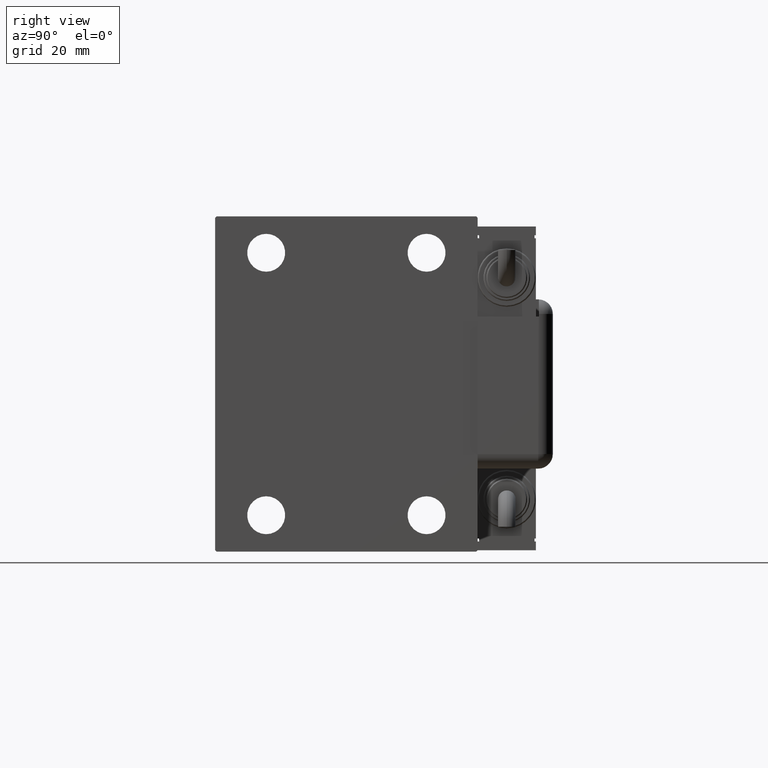
[diagram: clean part render]
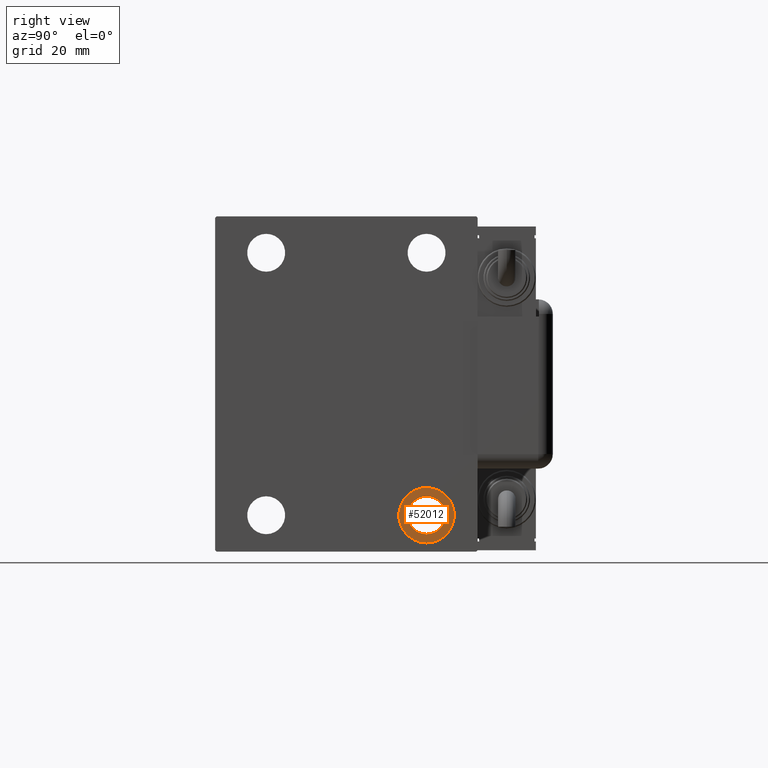
[diagram: same view with one face highlighted and labeled with its STEP entity id]
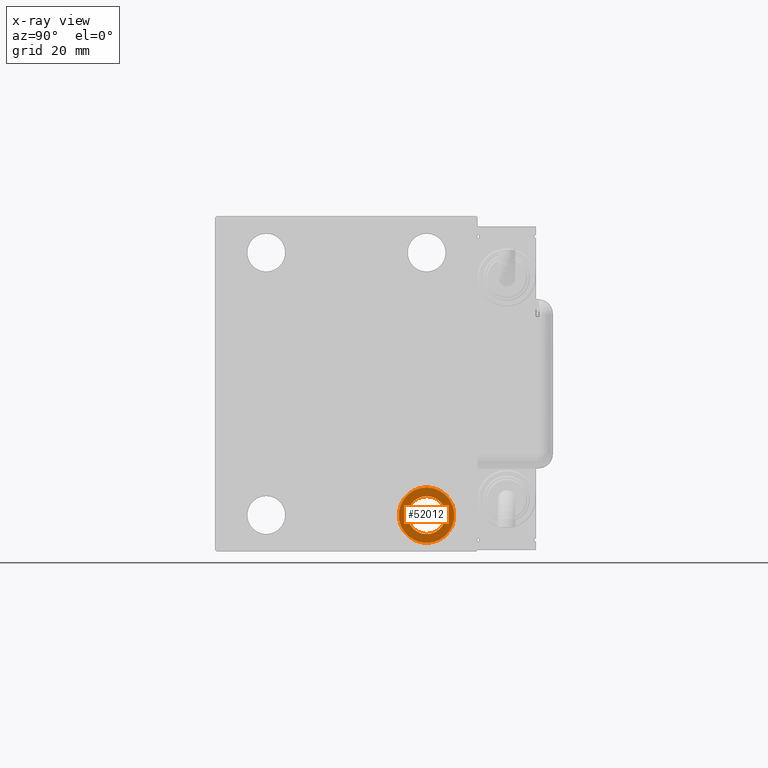
[diagram: x-ray of the same camera — body ghosted, the highlighted face saturated]
A machine part, right view. The second image highlights one B-rep face of the part: STEP entity #52012.
The next image is the same camera in x-ray: the body ghosted, the highlighted face saturated — about 0% of this face is hidden behind the body in this view.
In plain terms, the highlighted planar face has unit normal (1, 0, 0).
Its self-contained STEP definition (entity closure, byte-faithful):
#1858 = FACE_OUTER_BOUND ( 'NONE', #6965, .T. ) ;
#2051 = CIRCLE ( 'NONE', #49150, 6.499999999999999112 ) ;
#3564 = VERTEX_POINT ( 'NONE', #17737 ) ;
#6152 = ORIENTED_EDGE ( 'NONE', *, *, #24018, .F. ) ;
#6965 = EDGE_LOOP ( 'NONE', ( #24017, #6152 ) ) ;
#9709 = AXIS2_PLACEMENT_3D ( 'NONE', #38204, #33689, #47228 ) ;
#11172 = DIRECTION ( 'NONE',  ( 1.000000000000000000, 0.000000000000000000, -0.000000000000000000 ) ) ;
#12565 = DIRECTION ( 'NONE',  ( 0.000000000000000000, 0.000000000000000000, 1.000000000000000000 ) ) ;
#15693 = CARTESIAN_POINT ( 'NONE',  ( 125.0000000000000000, 27.49999999999998934, -44.99999999999998579 ) ) ;
#16164 = VERTEX_POINT ( 'NONE', #34940 ) ;
#16520 = CARTESIAN_POINT ( 'NONE',  ( 125.0000000000000000, 27.49999999999998934, -44.99999999999998579 ) ) ;
#16787 = DIRECTION ( 'NONE',  ( -1.000000000000000000, -0.000000000000000000, -0.000000000000000000 ) ) ;
#17737 = CARTESIAN_POINT ( 'NONE',  ( 125.0000000000000000, 27.49999999999998934, -35.49999999999998579 ) ) ;
#19225 = CARTESIAN_POINT ( 'NONE',  ( 125.0000000000000000, 27.49999999999998934, -44.99999999999998579 ) ) ;
#20197 = FACE_BOUND ( 'NONE', #27828, .T. ) ;
#24000 = EDGE_CURVE ( 'NONE', #16164, #45171, #2051, .T. ) ;
#24017 = ORIENTED_EDGE ( 'NONE', *, *, #26747, .F. ) ;
#24018 = EDGE_CURVE ( 'NONE', #3564, #33628, #35691, .T. ) ;
#24315 = AXIS2_PLACEMENT_3D ( 'NONE', #16520, #34888, #29482 ) ;
#24663 = CARTESIAN_POINT ( 'NONE',  ( 125.0000000000000000, 27.49999999999998934, -44.99999999999998579 ) ) ;
#26747 = EDGE_CURVE ( 'NONE', #33628, #3564, #55032, .T. ) ;
#27828 = EDGE_LOOP ( 'NONE', ( #38218, #58195 ) ) ;
#28725 = CARTESIAN_POINT ( 'NONE',  ( 125.0000000000000000, 27.49999999999998934, -38.49999999999998579 ) ) ;
#29482 = DIRECTION ( 'NONE',  ( 0.000000000000000000, 0.000000000000000000, -1.000000000000000000 ) ) ;
#30147 = AXIS2_PLACEMENT_3D ( 'NONE', #15693, #11172, #36067 ) ;
#32177 = CARTESIAN_POINT ( 'NONE',  ( 125.0000000000000000, 27.49999999999998934, -54.49999999999998579 ) ) ;
#33628 = VERTEX_POINT ( 'NONE', #32177 ) ;
#33689 = DIRECTION ( 'NONE',  ( -1.000000000000000000, -0.000000000000000000, -0.000000000000000000 ) ) ;
#34888 = DIRECTION ( 'NONE',  ( -1.000000000000000000, -0.000000000000000000, -0.000000000000000000 ) ) ;
#34940 = CARTESIAN_POINT ( 'NONE',  ( 125.0000000000000000, 27.49999999999998934, -51.49999999999998579 ) ) ;
#35691 = CIRCLE ( 'NONE', #9709, 9.500000000000001776 ) ;
#36067 = DIRECTION ( 'NONE',  ( 0.000000000000000000, 0.000000000000000000, 1.000000000000000000 ) ) ;
#37696 = AXIS2_PLACEMENT_3D ( 'NONE', #19225, #16787, #12565 ) ;
#38204 = CARTESIAN_POINT ( 'NONE',  ( 125.0000000000000000, 27.49999999999998934, -44.99999999999998579 ) ) ;
#38218 = ORIENTED_EDGE ( 'NONE', *, *, #49606, .T. ) ;
#38570 = PLANE ( 'NONE',  #30147 ) ;
#42416 = DIRECTION ( 'NONE',  ( 0.000000000000000000, 0.000000000000000000, -1.000000000000000000 ) ) ;
#43310 = DIRECTION ( 'NONE',  ( -1.000000000000000000, -0.000000000000000000, -0.000000000000000000 ) ) ;
#45171 = VERTEX_POINT ( 'NONE', #28725 ) ;
#47228 = DIRECTION ( 'NONE',  ( 0.000000000000000000, 0.000000000000000000, 1.000000000000000000 ) ) ;
#49150 = AXIS2_PLACEMENT_3D ( 'NONE', #24663, #43310, #42416 ) ;
#49606 = EDGE_CURVE ( 'NONE', #45171, #16164, #50259, .T. ) ;
#50259 = CIRCLE ( 'NONE', #24315, 6.499999999999999112 ) ;
#52012 = ADVANCED_FACE ( 'NONE', ( #1858, #20197 ), #38570, .T. ) ;
#55032 = CIRCLE ( 'NONE', #37696, 9.500000000000001776 ) ;
#58195 = ORIENTED_EDGE ( 'NONE', *, *, #24000, .T. ) ;